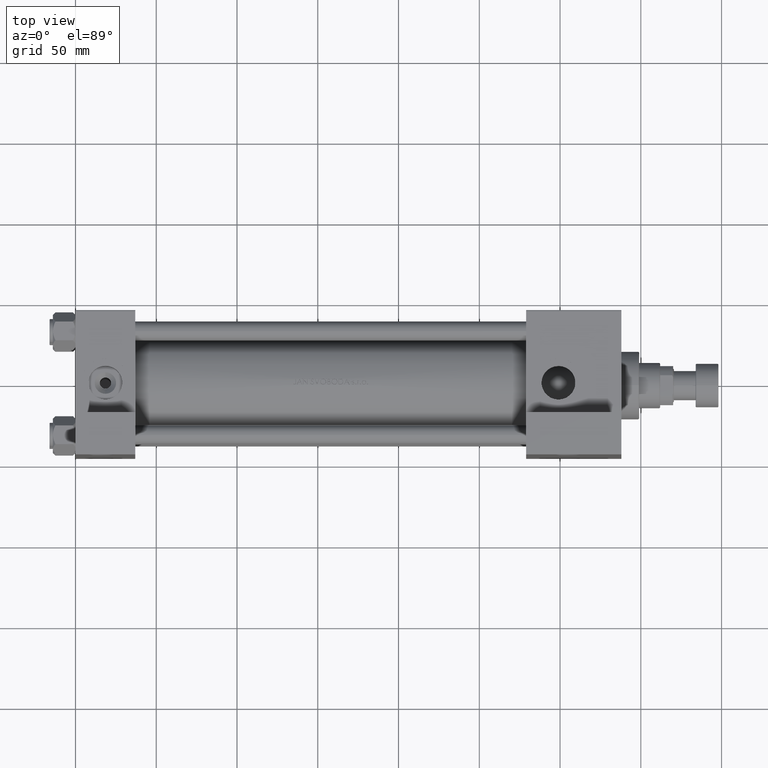
[diagram: clean part render]
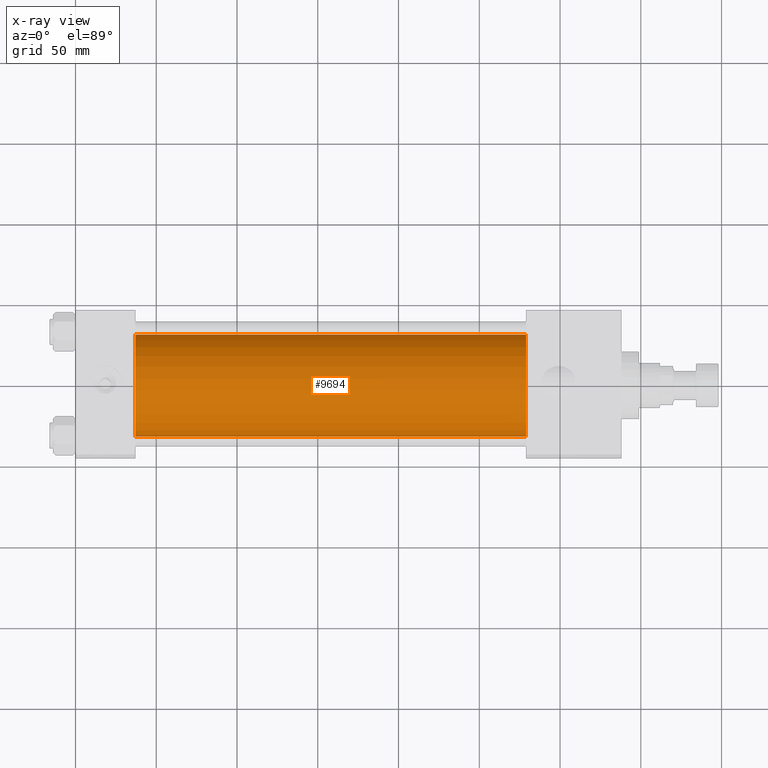
[diagram: x-ray — body ghosted, one internal face saturated and labeled with its STEP entity id]
A machine part, top view, then the same camera in x-ray: the body is ghosted and one INTERNAL B-rep face — a face not visible from any outside direction — is saturated and labeled: STEP entity #9694.
In plain terms, the highlighted cylindrical surface (partial cylindrical patch) has radius 31.5 mm, axis along (-1, -0, 0).
Its self-contained STEP definition (entity closure, byte-faithful):
#398 = EDGE_CURVE ( 'NONE', #24067, #12971, #47391, .T. ) ;
#2490 = CARTESIAN_POINT ( 'NONE',  ( 37.00000000000000000, 0.000000000000000000, -1.000000000000007772 ) ) ;
#3480 = VERTEX_POINT ( 'NONE', #40643 ) ;
#4595 = DIRECTION ( 'NONE',  ( 0.000000000000000000, 0.000000000000000000, 1.000000000000000000 ) ) ;
#4732 = CARTESIAN_POINT ( 'NONE',  ( 278.9999999999999432, 3.857637417314162689E-15, -32.50000000000000711 ) ) ;
#5084 = CYLINDRICAL_SURFACE ( 'NONE', #25738, 31.50000000000000000 ) ;
#7114 = CARTESIAN_POINT ( 'NONE',  ( 278.9999999999999432, 0.000000000000000000, 30.49999999999999289 ) ) ;
#7563 = CARTESIAN_POINT ( 'NONE',  ( 278.9999999999999432, 0.000000000000000000, 30.49999999999999289 ) ) ;
#9470 = EDGE_LOOP ( 'NONE', ( #38548, #34410, #26150, #27919 ) ) ;
#9694 = ADVANCED_FACE ( 'NONE', ( #12724 ), #5084, .F. ) ;
#12724 = FACE_OUTER_BOUND ( 'NONE', #9470, .T. ) ;
#12971 = VERTEX_POINT ( 'NONE', #13542 ) ;
#13542 = CARTESIAN_POINT ( 'NONE',  ( 278.9999999999999432, 3.857637417314162689E-15, -32.50000000000000711 ) ) ;
#16276 = CARTESIAN_POINT ( 'NONE',  ( 278.9999999999999432, 0.000000000000000000, -1.000000000000007772 ) ) ;
#16995 = AXIS2_PLACEMENT_3D ( 'NONE', #2490, #38240, #25850 ) ;
#19452 = VECTOR ( 'NONE', #44941, 1000.000000000000000 ) ;
#22688 = CIRCLE ( 'NONE', #16995, 31.50000000000000000 ) ;
#23728 = EDGE_CURVE ( 'NONE', #12971, #3480, #44210, .T. ) ;
#24067 = VERTEX_POINT ( 'NONE', #7114 ) ;
#25738 = AXIS2_PLACEMENT_3D ( 'NONE', #16276, #31988, #4595 ) ;
#25850 = DIRECTION ( 'NONE',  ( 0.000000000000000000, 0.000000000000000000, -1.000000000000000000 ) ) ;
#26150 = ORIENTED_EDGE ( 'NONE', *, *, #45157, .F. ) ;
#26680 = CARTESIAN_POINT ( 'NONE',  ( 278.9999999999999432, 0.000000000000000000, -1.000000000000007772 ) ) ;
#27353 = DIRECTION ( 'NONE',  ( -1.000000000000000000, -0.000000000000000000, -0.000000000000000000 ) ) ;
#27919 = ORIENTED_EDGE ( 'NONE', *, *, #47773, .F. ) ;
#30473 = DIRECTION ( 'NONE',  ( 1.000000000000000000, 0.000000000000000000, 0.000000000000000000 ) ) ;
#31988 = DIRECTION ( 'NONE',  ( -1.000000000000000000, -0.000000000000000000, -0.000000000000000000 ) ) ;
#34410 = ORIENTED_EDGE ( 'NONE', *, *, #23728, .T. ) ;
#38240 = DIRECTION ( 'NONE',  ( 1.000000000000000000, 0.000000000000000000, 0.000000000000000000 ) ) ;
#38505 = AXIS2_PLACEMENT_3D ( 'NONE', #26680, #30473, #45923 ) ;
#38548 = ORIENTED_EDGE ( 'NONE', *, *, #398, .T. ) ;
#39763 = VECTOR ( 'NONE', #27353, 1000.000000000000000 ) ;
#40643 = CARTESIAN_POINT ( 'NONE',  ( 37.00000000000000000, 3.857637417314162689E-15, -32.50000000000000711 ) ) ;
#44210 = LINE ( 'NONE', #4732, #19452 ) ;
#44941 = DIRECTION ( 'NONE',  ( -1.000000000000000000, -0.000000000000000000, -0.000000000000000000 ) ) ;
#45157 = EDGE_CURVE ( 'NONE', #48389, #3480, #22688, .T. ) ;
#45846 = LINE ( 'NONE', #7563, #39763 ) ;
#45923 = DIRECTION ( 'NONE',  ( 0.000000000000000000, 0.000000000000000000, -1.000000000000000000 ) ) ;
#47391 = CIRCLE ( 'NONE', #38505, 31.50000000000000000 ) ;
#47773 = EDGE_CURVE ( 'NONE', #24067, #48389, #45846, .T. ) ;
#48389 = VERTEX_POINT ( 'NONE', #49953 ) ;
#49953 = CARTESIAN_POINT ( 'NONE',  ( 37.00000000000000000, 0.000000000000000000, 30.49999999999999289 ) ) ;